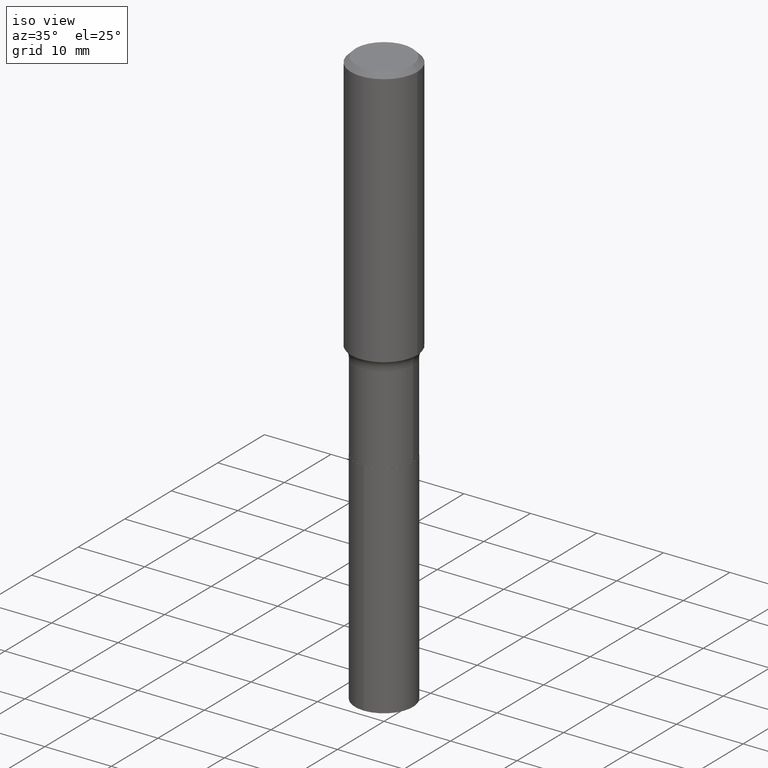
[diagram: clean part render]
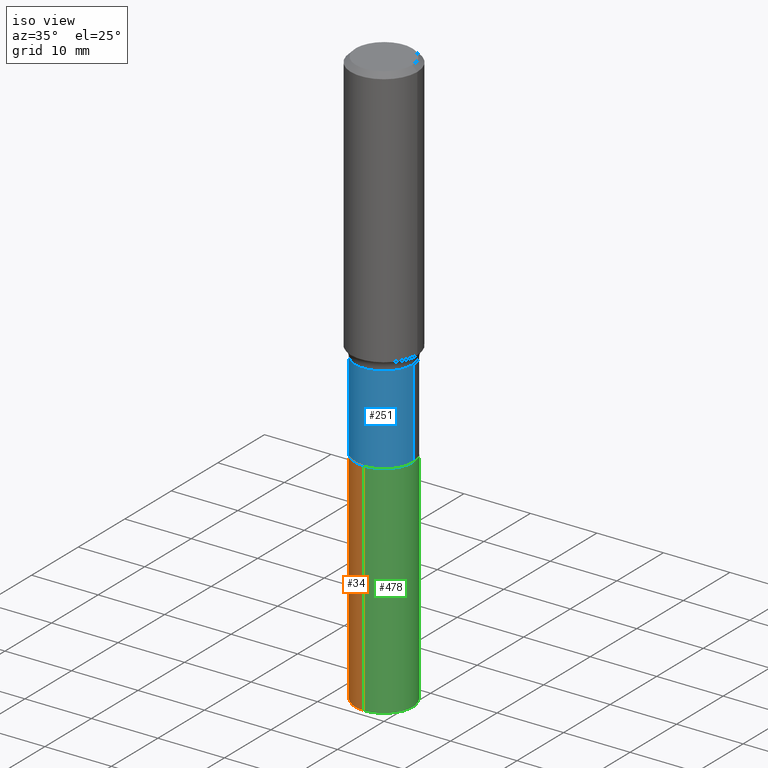
[diagram: same view with three faces highlighted in distinct colors, each labeled with its STEP entity id]
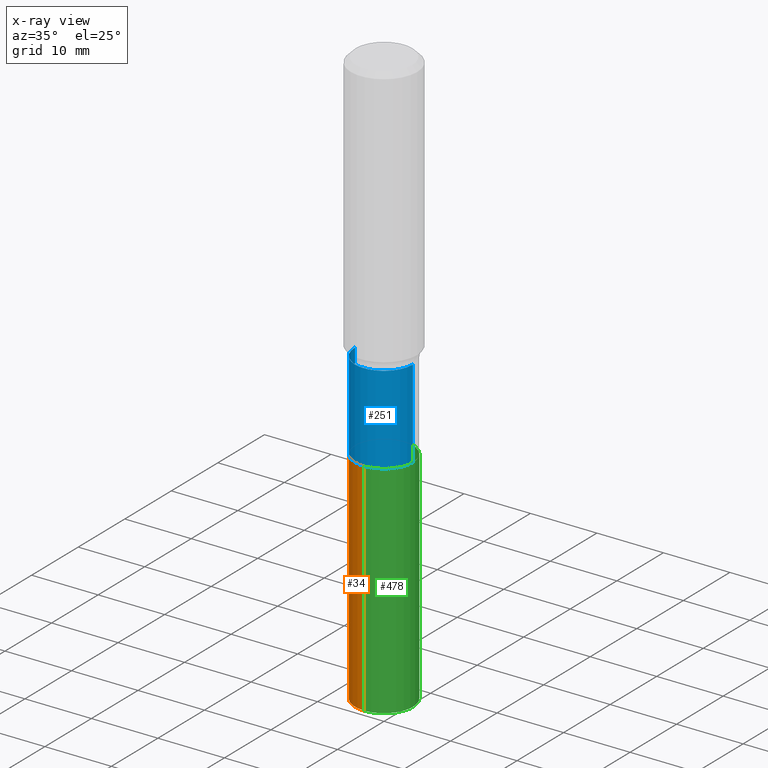
[diagram: x-ray of the same camera — body ghosted, the three highlighted faces saturated]
A machine part, iso view with three faces highlighted in distinct colors.
The next image is the same camera in x-ray (body ghosted, the three faces saturated) — at least one of them is partly hidden behind the body in this view.
Their STEP definitions:

[orange] entity #34 — the highlighted cylindrical surface (edge-blend (fillet) strip) has radius 4.3498 mm, axis along (-0, 0, 1).
#1 = VERTEX_POINT ( 'NONE', #127 ) ;
#7 = CYLINDRICAL_SURFACE ( 'NONE', #92, 0.1712500000000000133 ) ;
#9 = EDGE_CURVE ( 'NONE', #95, #182, #395, .T. ) ;
#13 = FACE_OUTER_BOUND ( 'NONE', #33, .T. ) ;
#29 = CARTESIAN_POINT ( 'NONE',  ( 8.399334429222156111E-29, -1.199243239908212747E-14, -3.434710508825729924 ) ) ;
#33 = EDGE_LOOP ( 'NONE', ( #456, #366, #143, #285 ) ) ;
#34 = ADVANCED_FACE ( 'NONE', ( #13 ), #7, .T. ) ;
#84 = CARTESIAN_POINT ( 'NONE',  ( -1.195832358553721070E-15, -0.1712500000000074241, -2.125899999999999235 ) ) ;
#92 = AXIS2_PLACEMENT_3D ( 'NONE', #150, #388, #465 ) ;
#95 = VERTEX_POINT ( 'NONE', #474 ) ;
#99 = AXIS2_PLACEMENT_3D ( 'NONE', #29, #489, #286 ) ;
#127 = CARTESIAN_POINT ( 'NONE',  ( -1.195832358553689318E-15, -0.1712500000000120037, -3.434710508825729480 ) ) ;
#140 = EDGE_CURVE ( 'NONE', #95, #1, #370, .T. ) ;
#143 = ORIENTED_EDGE ( 'NONE', *, *, #400, .T. ) ;
#150 = CARTESIAN_POINT ( 'NONE',  ( 5.198822135068982087E-29, -7.422540178246643119E-15, -2.125899999999999679 ) ) ;
#154 = DIRECTION ( 'NONE',  ( -2.445359563184350382E-29, 3.491637781037997457E-15, 1.000000000000000000 ) ) ;
#156 = CARTESIAN_POINT ( 'NONE',  ( 1.216804434989223333E-15, 0.1712499999999926026, -2.125900000000000567 ) ) ;
#182 = VERTEX_POINT ( 'NONE', #453 ) ;
#185 = EDGE_CURVE ( 'NONE', #182, #296, #439, .T. ) ;
#186 = DIRECTION ( 'NONE',  ( -6.982962677686265922E-15, -1.000000000000000000, 3.190479408658993096E-15 ) ) ;
#221 = AXIS2_PLACEMENT_3D ( 'NONE', #485, #416, #186 ) ;
#243 = VECTOR ( 'NONE', #154, 39.37007874015748143 ) ;
#254 = DIRECTION ( 'NONE',  ( -2.445359563184350382E-29, 3.491637781037997457E-15, 1.000000000000000000 ) ) ;
#285 = ORIENTED_EDGE ( 'NONE', *, *, #185, .F. ) ;
#286 = DIRECTION ( 'NONE',  ( -6.982962677686265922E-15, -1.000000000000000000, 3.190479408658993096E-15 ) ) ;
#296 = VERTEX_POINT ( 'NONE', #317 ) ;
#317 = CARTESIAN_POINT ( 'NONE',  ( -1.195832358553721070E-15, -0.1712500000000074241, -2.125899999999999235 ) ) ;
#366 = ORIENTED_EDGE ( 'NONE', *, *, #140, .T. ) ;
#370 = CIRCLE ( 'NONE', #99, 0.1712500000000000133 ) ;
#371 = VECTOR ( 'NONE', #254, 39.37007874015748143 ) ;
#388 = DIRECTION ( 'NONE',  ( -2.445359563184350382E-29, 3.491637781037997062E-15, 1.000000000000000000 ) ) ;
#395 = LINE ( 'NONE', #156, #243 ) ;
#400 = EDGE_CURVE ( 'NONE', #1, #296, #445, .T. ) ;
#416 = DIRECTION ( 'NONE',  ( -2.445359563184350382E-29, 3.491637781037997062E-15, 1.000000000000000000 ) ) ;
#439 = CIRCLE ( 'NONE', #221, 0.1712500000000000133 ) ;
#445 = LINE ( 'NONE', #84, #371 ) ;
#453 = CARTESIAN_POINT ( 'NONE',  ( 1.216804434989255677E-15, 0.1712499999999926026, -2.125900000000000567 ) ) ;
#456 = ORIENTED_EDGE ( 'NONE', *, *, #9, .F. ) ;
#465 = DIRECTION ( 'NONE',  ( -6.982962677686265922E-15, -1.000000000000000000, 3.190479408658993096E-15 ) ) ;
#474 = CARTESIAN_POINT ( 'NONE',  ( 1.216804434989255677E-15, 0.1712499999999880784, -3.434710508825730368 ) ) ;
#485 = CARTESIAN_POINT ( 'NONE',  ( 5.198822135068982087E-29, -7.422540178246643119E-15, -2.125899999999999679 ) ) ;
#489 = DIRECTION ( 'NONE',  ( -2.445359563184350382E-29, 3.491637781037997062E-15, 1.000000000000000000 ) ) ;

[blue] entity #251 — the highlighted cylindrical surface (edge-blend (fillet) strip) has radius 4.3497 mm, axis along (-0, 0, 1).
#6 = ORIENTED_EDGE ( 'NONE', *, *, #350, .T. ) ;
#14 = FACE_OUTER_BOUND ( 'NONE', #461, .T. ) ;
#52 = CARTESIAN_POINT ( 'NONE',  ( 0.1712499999999999856, -1.195832358553773135E-15, 8.350452728550539064E-30 ) ) ;
#54 = DIRECTION ( 'NONE',  ( -2.445468806185136597E-29, 3.491481338843145583E-15, 1.000000000000000000 ) ) ;
#58 = EDGE_CURVE ( 'NONE', #425, #248, #237, .T. ) ;
#152 = CARTESIAN_POINT ( 'NONE',  ( 0.000000000000000000, 0.000000000000000000, 0.000000000000000000 ) ) ;
#155 = AXIS2_PLACEMENT_3D ( 'NONE', #167, #212, #321 ) ;
#167 = CARTESIAN_POINT ( 'NONE',  ( 3.917885574389206976E-29, -5.593702252960603405E-15, -1.602099999999999858 ) ) ;
#171 = CARTESIAN_POINT ( 'NONE',  ( 0.1712500000000000133, -8.616626796130994158E-15, -2.125399999999999956 ) ) ;
#181 = CARTESIAN_POINT ( 'NONE',  ( -0.1712500000000000133, -5.290443910279740453E-15, -2.125399999999999956 ) ) ;
#197 = VECTOR ( 'NONE', #209, 39.37007874015748143 ) ;
#200 = CYLINDRICAL_SURFACE ( 'NONE', #354, 0.1712499999999999856 ) ;
#209 = DIRECTION ( 'NONE',  ( -2.445468806185136877E-29, 3.491481338843145188E-15, 1.000000000000000000 ) ) ;
#212 = DIRECTION ( 'NONE',  ( -2.445468806185136597E-29, 3.491481338843145583E-15, 1.000000000000000000 ) ) ;
#213 = CARTESIAN_POINT ( 'NONE',  ( 0.1712499999999999578, -6.789534611514375948E-15, -1.602099999999999858 ) ) ;
#230 = AXIS2_PLACEMENT_3D ( 'NONE', #473, #443, #289 ) ;
#237 = CIRCLE ( 'NONE', #155, 0.1712499999999999578 ) ;
#244 = EDGE_CURVE ( 'NONE', #435, #425, #390, .T. ) ;
#248 = VERTEX_POINT ( 'NONE', #213 ) ;
#251 = ADVANCED_FACE ( 'NONE', ( #14 ), #200, .T. ) ;
#271 = ORIENTED_EDGE ( 'NONE', *, *, #391, .T. ) ;
#289 = DIRECTION ( 'NONE',  ( 1.000000000000000000, -6.982962677686268288E-15, 0.000000000000000000 ) ) ;
#297 = CARTESIAN_POINT ( 'NONE',  ( -0.1712499999999999578, -5.290443910279740453E-15, -1.602099999999999858 ) ) ;
#302 = VERTEX_POINT ( 'NONE', #171 ) ;
#305 = CIRCLE ( 'NONE', #230, 0.1712500000000000133 ) ;
#321 = DIRECTION ( 'NONE',  ( 1.000000000000000000, -6.982962677686265133E-15, 0.000000000000000000 ) ) ;
#331 = VECTOR ( 'NONE', #402, 39.37007874015748143 ) ;
#350 = EDGE_CURVE ( 'NONE', #302, #248, #444, .T. ) ;
#354 = AXIS2_PLACEMENT_3D ( 'NONE', #152, #54, #404 ) ;
#361 = CARTESIAN_POINT ( 'NONE',  ( -0.1712499999999999856, 1.216804434989171466E-15, -8.423676342061525262E-30 ) ) ;
#390 = LINE ( 'NONE', #361, #197 ) ;
#391 = EDGE_CURVE ( 'NONE', #435, #302, #305, .T. ) ;
#399 = ORIENTED_EDGE ( 'NONE', *, *, #244, .F. ) ;
#402 = DIRECTION ( 'NONE',  ( -2.445468806185136877E-29, 3.491481338843145188E-15, 1.000000000000000000 ) ) ;
#404 = DIRECTION ( 'NONE',  ( 1.000000000000000000, -6.982962677686266711E-15, 4.876176775795935793E-29 ) ) ;
#425 = VERTEX_POINT ( 'NONE', #297 ) ;
#435 = VERTEX_POINT ( 'NONE', #181 ) ;
#441 = ORIENTED_EDGE ( 'NONE', *, *, #58, .F. ) ;
#443 = DIRECTION ( 'NONE',  ( -2.445468806185136597E-29, 3.491481338843145583E-15, 1.000000000000000000 ) ) ;
#444 = LINE ( 'NONE', #52, #331 ) ;
#461 = EDGE_LOOP ( 'NONE', ( #399, #271, #6, #441 ) ) ;
#473 = CARTESIAN_POINT ( 'NONE',  ( 5.197599400665889285E-29, -7.420794437577220826E-15, -2.125399999999999956 ) ) ;

[green] entity #478 — the highlighted cylindrical surface (edge-blend (fillet) strip) has radius 4.3498 mm, axis along (-0, 0, 1).
#1 = VERTEX_POINT ( 'NONE', #127 ) ;
#9 = EDGE_CURVE ( 'NONE', #95, #182, #395, .T. ) ;
#10 = CARTESIAN_POINT ( 'NONE',  ( 5.198822135068982087E-29, -7.422540178246643119E-15, -2.125899999999999679 ) ) ;
#21 = DIRECTION ( 'NONE',  ( -6.982962677686265922E-15, -1.000000000000000000, 3.190479408658993096E-15 ) ) ;
#41 = AXIS2_PLACEMENT_3D ( 'NONE', #10, #359, #21 ) ;
#48 = EDGE_CURVE ( 'NONE', #296, #182, #49, .T. ) ;
#49 = CIRCLE ( 'NONE', #41, 0.1712500000000000133 ) ;
#56 = DIRECTION ( 'NONE',  ( -6.982962677686265922E-15, -1.000000000000000000, 3.190479408658993096E-15 ) ) ;
#84 = CARTESIAN_POINT ( 'NONE',  ( -1.195832358553721070E-15, -0.1712500000000074241, -2.125899999999999235 ) ) ;
#85 = DIRECTION ( 'NONE',  ( -2.445359563184350382E-29, 3.491637781037997062E-15, 1.000000000000000000 ) ) ;
#93 = FACE_OUTER_BOUND ( 'NONE', #228, .T. ) ;
#95 = VERTEX_POINT ( 'NONE', #474 ) ;
#127 = CARTESIAN_POINT ( 'NONE',  ( -1.195832358553689318E-15, -0.1712500000000120037, -3.434710508825729480 ) ) ;
#154 = DIRECTION ( 'NONE',  ( -2.445359563184350382E-29, 3.491637781037997457E-15, 1.000000000000000000 ) ) ;
#156 = CARTESIAN_POINT ( 'NONE',  ( 1.216804434989223333E-15, 0.1712499999999926026, -2.125900000000000567 ) ) ;
#182 = VERTEX_POINT ( 'NONE', #453 ) ;
#228 = EDGE_LOOP ( 'NONE', ( #307, #352, #255, #420 ) ) ;
#243 = VECTOR ( 'NONE', #154, 39.37007874015748143 ) ;
#254 = DIRECTION ( 'NONE',  ( -2.445359563184350382E-29, 3.491637781037997457E-15, 1.000000000000000000 ) ) ;
#255 = ORIENTED_EDGE ( 'NONE', *, *, #48, .F. ) ;
#275 = AXIS2_PLACEMENT_3D ( 'NONE', #336, #85, #455 ) ;
#279 = DIRECTION ( 'NONE',  ( -2.445359563184350382E-29, 3.491637781037997062E-15, 1.000000000000000000 ) ) ;
#296 = VERTEX_POINT ( 'NONE', #317 ) ;
#307 = ORIENTED_EDGE ( 'NONE', *, *, #368, .T. ) ;
#317 = CARTESIAN_POINT ( 'NONE',  ( -1.195832358553721070E-15, -0.1712500000000074241, -2.125899999999999235 ) ) ;
#322 = CIRCLE ( 'NONE', #468, 0.1712500000000000133 ) ;
#336 = CARTESIAN_POINT ( 'NONE',  ( 5.198822135068982087E-29, -7.422540178246643119E-15, -2.125899999999999679 ) ) ;
#338 = CYLINDRICAL_SURFACE ( 'NONE', #275, 0.1712500000000000133 ) ;
#352 = ORIENTED_EDGE ( 'NONE', *, *, #9, .T. ) ;
#359 = DIRECTION ( 'NONE',  ( -2.445359563184350382E-29, 3.491637781037997062E-15, 1.000000000000000000 ) ) ;
#367 = CARTESIAN_POINT ( 'NONE',  ( 8.399334429222156111E-29, -1.199243239908212747E-14, -3.434710508825729924 ) ) ;
#368 = EDGE_CURVE ( 'NONE', #1, #95, #322, .T. ) ;
#371 = VECTOR ( 'NONE', #254, 39.37007874015748143 ) ;
#395 = LINE ( 'NONE', #156, #243 ) ;
#400 = EDGE_CURVE ( 'NONE', #1, #296, #445, .T. ) ;
#420 = ORIENTED_EDGE ( 'NONE', *, *, #400, .F. ) ;
#445 = LINE ( 'NONE', #84, #371 ) ;
#453 = CARTESIAN_POINT ( 'NONE',  ( 1.216804434989255677E-15, 0.1712499999999926026, -2.125900000000000567 ) ) ;
#455 = DIRECTION ( 'NONE',  ( -6.982962677686265922E-15, -1.000000000000000000, 3.190479408658993096E-15 ) ) ;
#468 = AXIS2_PLACEMENT_3D ( 'NONE', #367, #279, #56 ) ;
#474 = CARTESIAN_POINT ( 'NONE',  ( 1.216804434989255677E-15, 0.1712499999999880784, -3.434710508825730368 ) ) ;
#478 = ADVANCED_FACE ( 'NONE', ( #93 ), #338, .T. ) ;